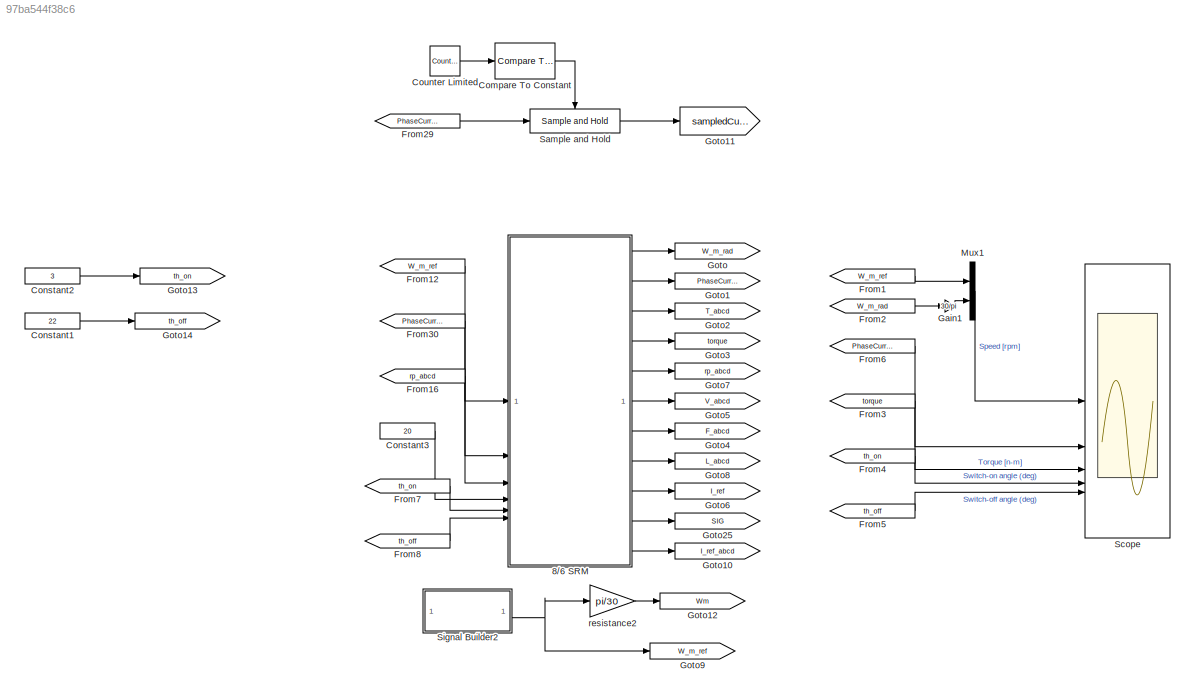
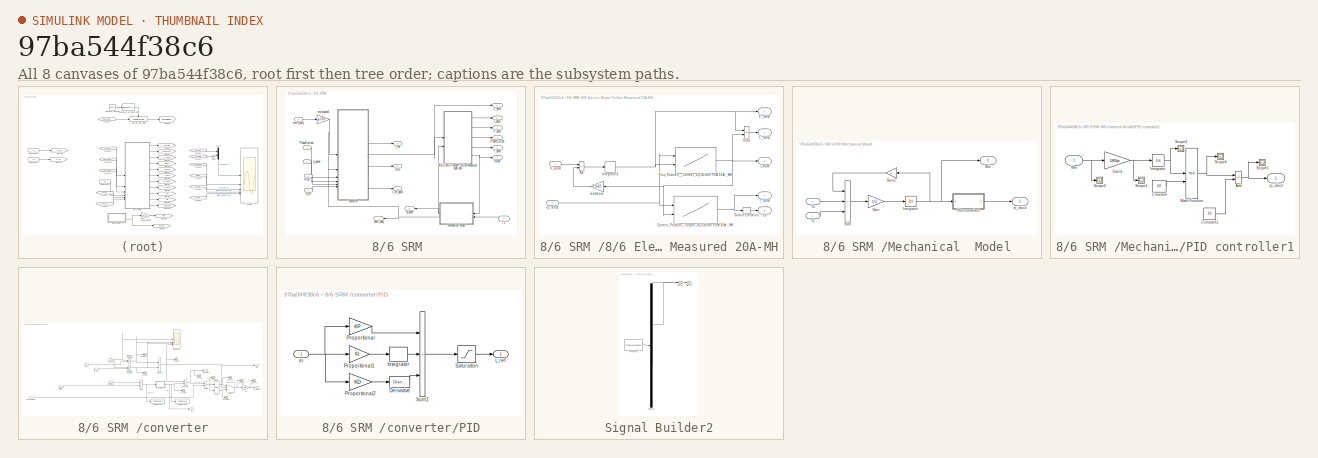
[diagram: thumbnail index - all 8 canvases of the model, root first then tree order]
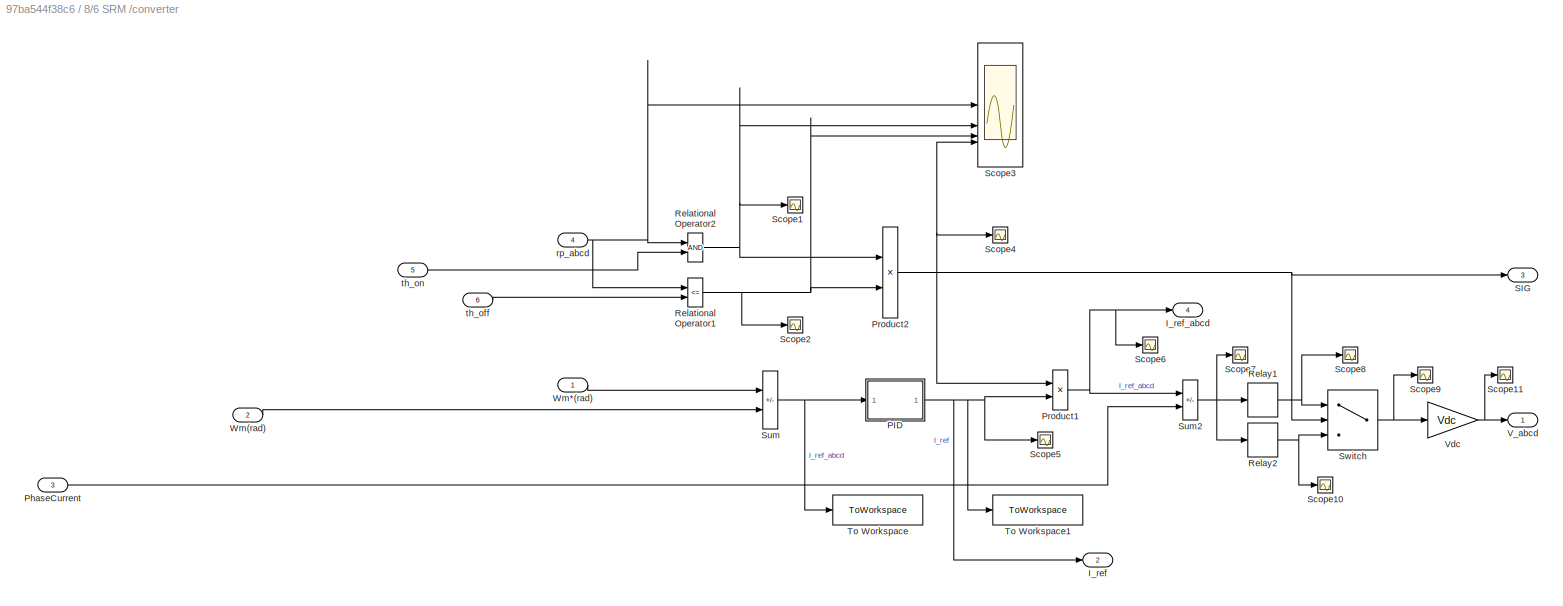
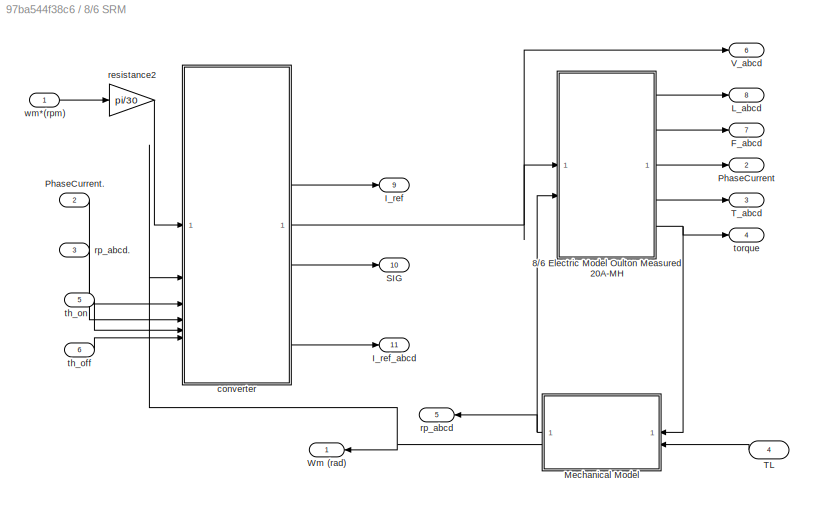
MODEL slx_97ba544f38c6
KIND model
CONFIG AbsTol = auto
CONFIG EnableMultiTasking = off
CONFIG FixedStep = Ts
CONFIG InitFcn = eval  SRM_Parameters ;
CONFIG MaxStep = auto
CONFIG MinStep = auto
CONFIG RelTol = 1e-3
CONFIG SampleTimeConstraint = Unconstrained
CONFIG SolverName = ode4
CONFIG StartTime = 0.0
CONFIG StopTime = 1.5
BLOCK [SubSystem] 8//6 SRM 
BLOCK [SubSystem] 8//6 SRM /8//6 Electric Model Oulton Measured 20A-MH
BLOCK [Sum] 8//6 SRM /8//6 Electric Model Oulton Measured 20A-MH/Ad
  IconShape = rectangular
  Inputs = +-
BLOCK [Lookup2D] 8//6 SRM /8//6 Electric Model Oulton Measured 20A-MH/Current_Position_Torque_4Q Oulton FEM 30A _MH.
  ColumnIndex = [0:0.2:30];
  InitFcn = T_4Q_MH = [    0,   0,   0,   0,   0,0.001,0.001,0.001,0.002,0.002,0.003,0.004,0.004,0.005,0.006,0.007,0.008,0.009,0.01,0.011,0.012,0.014,0.015,0.016,0.017,0.018,0.019,0.02,0.021,0.022,0.023,0.023,0.024,0.025,0.025,0.026,0.026,0.026,0.027,0.027,0.028,0.028,0.028,0.028,0.029,0.029,0.029,0.029,0.03,0.03,0.03,0.03,0.03,0.03,0.031,0.031,0.031,0.031,0.031,0.031,0.031,0.032,0.032,0.032,0.032,0.032,0.032...<+116278ch>
  InputSameDT = off
  RowIndex = [-30:0.5:30]
  SaturateOnIntegerOverflow = off
  Table = T_4Q_MH
BLOCK [Product] 8//6 SRM /8//6 Electric Model Oulton Measured 20A-MH/Divid
  Inputs = */
BLOCK [Outport] 8//6 SRM /8//6 Electric Model Oulton Measured 20A-MH/F_abcd
  Port = 2
BLOCK [Lookup2D] 8//6 SRM /8//6 Electric Model Oulton Measured 20A-MH/Flux_Position__Current_4Q Oulton FEM 30A _MH.
  ColumnIndex = my_flux_MH
  InitFcn = my_flux_MH = linspace(0,0.9,300);                                                                                                                                                                                                                                                                                                                                                                               ...<+219307ch>
  InputSameDT = off
  RowIndex = [-30:0.5:30]
  SaturateOnIntegerOverflow = off
  Table = Curr_F_4Q_MH
BLOCK [Outport] 8//6 SRM /8//6 Electric Model Oulton Measured 20A-MH/I_abcd
  Port = 3
BLOCK [DiscreteIntegrator] 8//6 SRM /8//6 Electric Model Oulton Measured 20A-MH/Integrator1
  ICPrevOutput = DiscIntNeverNeededParam
  ICPrevScaledInput = DiscIntNeverNeededParam
  InitialConditionSetting = Auto
  LimitOutput = on
  LowerSaturationLimit = 0
  SampleTime = Ts
BLOCK [Outport] 8//6 SRM /8//6 Electric Model Oulton Measured 20A-MH/L_abcd
BLOCK [Sum] 8//6 SRM /8//6 Electric Model Oulton Measured 20A-MH/Sum of Elements
  IconShape = rectangular
  Inputs = +
BLOCK [Outport] 8//6 SRM /8//6 Electric Model Oulton Measured 20A-MH/T_abcd
  Port = 4
BLOCK [Outport] 8//6 SRM /8//6 Electric Model Oulton Measured 20A-MH/Te
  Port = 5
BLOCK [Inport] 8//6 SRM /8//6 Electric Model Oulton Measured 20A-MH/V_abcd
BLOCK [Gain] 8//6 SRM /8//6 Electric Model Oulton Measured 20A-MH/resistance
  Gain = 0.642
BLOCK [Inport] 8//6 SRM /8//6 Electric Model Oulton Measured 20A-MH/rp_abcd
  Port = 2
BLOCK [Outport] 8//6 SRM /F_abcd
  Port = 7
BLOCK [Outport] 8//6 SRM /I_ref
  Port = 9
BLOCK [Outport] 8//6 SRM /I_ref_abcd
  Port = 11
BLOCK [Outport] 8//6 SRM /L_abcd
  Port = 8
BLOCK [SubSystem] 8//6 SRM /Mechanical  Model
  NameLocation = top
BLOCK [Gain] 8//6 SRM /Mechanical  Model/Gain
  Gain = 1/J
  NameLocation = top
BLOCK [Gain] 8//6 SRM /Mechanical  Model/Gain2
  Gain = B
  NameLocation = top
BLOCK [Integrator] 8//6 SRM /Mechanical  Model/Integrator
  NameLocation = top
BLOCK [SubSystem] 8//6 SRM /Mechanical  Model/PID controller1
BLOCK [Sum] 8//6 SRM /Mechanical  Model/PID controller1/Add
  IconShape = rectangular
  Inputs = +-
BLOCK [Constant] 8//6 SRM /Mechanical  Model/PID controller1/Constant
  NameLocation = top
  Value = 60
BLOCK [Constant] 8//6 SRM /Mechanical  Model/PID controller1/Constant1
  Value = 30
BLOCK [Gain] 8//6 SRM /Mechanical  Model/PID controller1/Gain1
  Gain = 180/pi
  NameLocation = top
  OutDataTypeStr = Inherit: Same as input
  ParamDataTypeStr = Inherit: Same as input
  SaturateOnIntegerOverflow = on
BLOCK [Integrator] 8//6 SRM /Mechanical  Model/PID controller1/Integrator
  InitialCondition = [0 -15 -30 -45]
BLOCK [Math] 8//6 SRM /Mechanical  Model/PID controller1/Math Function
  NameLocation = top
  Operator = mod
  SignedPower = on
BLOCK [Scope] 8//6 SRM /Mechanical  Model/PID controller1/Scope1
  Floating = off
  NumInputPorts = 1
  ScopeSpecificationString = Simulink.scopes.TimeScopeBlockCfg('CurrentConfiguration', extmgr.ConfigurationSet(extmgr.Configuration('Core','General UI',true),extmgr.Configuration('Core','Source UI',true),extmgr.Configuration('Sources','WiredSimulink',true,'DataLoggingVariableName','ScopeData1'),extmgr.Configuration('Visuals','Time Domain',true,'SerializedDisplays',{struct('MinYLimReal','0','MaxYLimReal','12100','YLabelReal','...<+1447ch>
BLOCK [Scope] 8//6 SRM /Mechanical  Model/PID controller1/Scope2
  Floating = off
  NumInputPorts = 1
  ScopeSpecificationString = Simulink.scopes.TimeScopeBlockCfg('CurrentConfiguration', extmgr.ConfigurationSet(extmgr.Configuration('Core','General UI',true),extmgr.Configuration('Core','Source UI',true),extmgr.Configuration('Sources','WiredSimulink',true,'DataLoggingVariableName','ScopeData2'),extmgr.Configuration('Visuals','Time Domain',true,'SerializedDisplays',{struct('MinYLimReal','71.36007','MaxYLimReal','74.69083','YLa...<+1490ch>
BLOCK [Scope] 8//6 SRM /Mechanical  Model/PID controller1/Scope3
  Floating = off
  NumInputPorts = 1
  ScopeSpecificationString = Simulink.scopes.TimeScopeBlockCfg('CurrentConfiguration', extmgr.ConfigurationSet(extmgr.Configuration('Core','General UI',true),extmgr.Configuration('Core','Source UI',true),extmgr.Configuration('Sources','WiredSimulink',true,'DataLoggingVariableName','ScopeData3'),extmgr.Configuration('Visuals','Time Domain',true,'SerializedDisplays',{struct('MinYLimReal','-100.00000','MaxYLimReal','9000.00000',...<+1555ch>
BLOCK [Scope] 8//6 SRM /Mechanical  Model/PID controller1/Scope4
  Floating = off
  NumInputPorts = 1
  ScopeSpecificationString = Simulink.scopes.TimeScopeBlockCfg('CurrentConfiguration', extmgr.ConfigurationSet(extmgr.Configuration('Core','General UI',true),extmgr.Configuration('Core','Source UI',true),extmgr.Configuration('Sources','WiredSimulink',true,'DataLoggingVariableName','ScopeData4'),extmgr.Configuration('Visuals','Time Domain',true,'SerializedDisplays',{struct('MinYLimReal','-4.95397','MaxYLimReal','61.1565','YLab...<+1551ch>
BLOCK [Scope] 8//6 SRM /Mechanical  Model/PID controller1/Scope5
  Floating = off
  NumInputPorts = 1
  ScopeSpecificationString = Simulink.scopes.TimeScopeBlockCfg('CurrentConfiguration', extmgr.ConfigurationSet(extmgr.Configuration('Core','General UI',true),extmgr.Configuration('Core','Source UI',true),extmgr.Configuration('Sources','WiredSimulink',true,'DataLoggingVariableName','ScopeData5'),extmgr.Configuration('Visuals','Time Domain',true,'SerializedDisplays',{struct('MinYLimReal','-60','MaxYLimReal','40','YLabelReal',''...<+1469ch>
BLOCK [Inport] 8//6 SRM /Mechanical  Model/PID controller1/Wm
BLOCK [Outport] 8//6 SRM /Mechanical  Model/PID controller1/rp_abcd
BLOCK [Sum] 8//6 SRM /Mechanical  Model/Sum
  IconShape = rectangular
  Inputs = -+-
  NameLocation = top
BLOCK [Inport] 8//6 SRM /Mechanical  Model/TL
  Port = 2
BLOCK [Inport] 8//6 SRM /Mechanical  Model/Te
BLOCK [Outport] 8//6 SRM /Mechanical  Model/Wm
  Port = 2
BLOCK [Outport] 8//6 SRM /Mechanical  Model/rp_abcd
BLOCK [Outport] 8//6 SRM /PhaseCurrent
  Port = 2
BLOCK [Inport] 8//6 SRM /PhaseCurrent.
  Port = 2
BLOCK [Outport] 8//6 SRM /SIG
  Port = 10
BLOCK [Inport] 8//6 SRM /TL
  NameLocation = top
  Port = 4
BLOCK [Outport] 8//6 SRM /T_abcd
  Port = 3
BLOCK [Outport] 8//6 SRM /V_abcd
  Port = 6
BLOCK [Outport] 8//6 SRM /Wm (rad)
  NameLocation = top
BLOCK [SubSystem] 8//6 SRM /converter
BLOCK [Outport] 8//6 SRM /converter/I_ref
  Port = 2
BLOCK [Outport] 8//6 SRM /converter/I_ref_abcd
  Port = 4
BLOCK [SubSystem] 8//6 SRM /converter/PID
BLOCK [Reference] 8//6 SRM /converter/PID/ Derivative  REF=simulink/Discrete/Discrete Derivative
  SourceBlock = simulink/Discrete/Discrete Derivative
  SourceType = Discrete Derivative
BLOCK [Outport] 8//6 SRM /converter/PID/I_ref
BLOCK [DiscreteIntegrator] 8//6 SRM /converter/PID/Integrator
  ICPrevOutput = DiscIntNeverNeededParam
  ICPrevScaledInput = DiscIntNeverNeededParam
  InitialConditionSetting = Auto
  SampleTime = -1
BLOCK [Gain] 8//6 SRM /converter/PID/Proportional
  Gain = KP
  OutDataTypeStr = Inherit: Same as input
  ParamDataTypeStr = Inherit: Same as input
  SaturateOnIntegerOverflow = on
BLOCK [Gain] 8//6 SRM /converter/PID/Proportional1
  Gain = KI
  OutDataTypeStr = Inherit: Same as input
  ParamDataTypeStr = Inherit: Same as input
  SaturateOnIntegerOverflow = on
BLOCK [Gain] 8//6 SRM /converter/PID/Proportional2
  Gain = KD
  OutDataTypeStr = Inherit: Same as input
  ParamDataTypeStr = Inherit: Same as input
  SaturateOnIntegerOverflow = on
BLOCK [Saturate] 8//6 SRM /converter/PID/Saturation
  LowerLimit = -I_peak
  UpperLimit = I_peak
BLOCK [Sum] 8//6 SRM /converter/PID/Sum1
  IconShape = rectangular
  InputSameDT = on
  Inputs = +++
  OutDataTypeStr = Inherit: Same as first input
  SaturateOnIntegerOverflow = on
BLOCK [Inport] 8//6 SRM /converter/PID/in
BLOCK [Inport] 8//6 SRM /converter/PhaseCurrent
  Port = 3
BLOCK [Product] 8//6 SRM /converter/Product1
  OutDataTypeStr = double
  SaturateOnIntegerOverflow = on
BLOCK [Product] 8//6 SRM /converter/Product2
  OutDataTypeStr = double
  SaturateOnIntegerOverflow = on
BLOCK [RelationalOperator] 8//6 SRM /converter/Relational Operator1
  InputSameDT = off
  NameLocation = top
  Operator = <=
  OutDataTypeStr = fixdt(1,16)
BLOCK [RelationalOperator] 8//6 SRM /converter/Relational Operator2
  InputSameDT = off
  NameLocation = top
  OutDataTypeStr = fixdt(1,16)
BLOCK [Relay] 8//6 SRM /converter/Relay1
  OffOutputValue = -1
  OffSwitchValue = -di
  OnSwitchValue = di
  SampleTime = Ts
BLOCK [Relay] 8//6 SRM /converter/Relay2
  OffOutputValue = -1
  OffSwitchValue = -0.001
  OnSwitchValue = 0.001
  SampleTime = Ts
BLOCK [Outport] 8//6 SRM /converter/SIG
  Port = 3
BLOCK [Scope] 8//6 SRM /converter/Scope1
  Floating = off
  NumInputPorts = 1
  ScopeSpecificationString = Simulink.scopes.TimeScopeBlockCfg('CurrentConfiguration', extmgr.ConfigurationSet(extmgr.Configuration('Core','General UI',true),extmgr.Configuration('Core','Source UI',true),extmgr.Configuration('Sources','WiredSimulink',true,'DataLoggingVariableName','ScopeData7'),extmgr.Configuration('Visuals','Time Domain',true,'SerializedDisplays',{struct('MinYLimReal','-0.1','MaxYLimReal','1.2','YLabelReal',...<+1557ch>
BLOCK [Scope] 8//6 SRM /converter/Scope10
  Floating = off
  NumInputPorts = 1
  ScopeSpecificationString = Simulink.scopes.TimeScopeBlockCfg('CurrentConfiguration', extmgr.ConfigurationSet(extmgr.Configuration('Core','General UI',true),extmgr.Configuration('Core','Source UI',true),extmgr.Configuration('Sources','WiredSimulink',true,'DataLoggingVariableName','ScopeData15'),extmgr.Configuration('Visuals','Time Domain',true,'SerializedDisplays',{struct('MinYLimReal','-0.24508','MaxYLimReal','0.98005','YLa...<+1524ch>
BLOCK [Scope] 8//6 SRM /converter/Scope11
  Floating = off
  NumInputPorts = 1
  ScopeSpecificationString = Simulink.scopes.TimeScopeBlockCfg('CurrentConfiguration', extmgr.ConfigurationSet(extmgr.Configuration('Core','General UI',true),extmgr.Configuration('Core','Source UI',true),extmgr.Configuration('Sources','WiredSimulink',true,'DataLoggingVariableName','ScopeData16'),extmgr.Configuration('Visuals','Time Domain',true,'SerializedDisplays',{struct('MinYLimReal','-0.1','MaxYLimReal','640','YLabelReal'...<+1490ch>
BLOCK [Scope] 8//6 SRM /converter/Scope2
  Floating = off
  NumInputPorts = 1
  ScopeSpecificationString = Simulink.scopes.TimeScopeBlockCfg('CurrentConfiguration', extmgr.ConfigurationSet(extmgr.Configuration('Core','General UI',true),extmgr.Configuration('Core','Source UI',true),extmgr.Configuration('Sources','WiredSimulink',true,'DataLoggingVariableName','ScopeData8'),extmgr.Configuration('Visuals','Time Domain',true,'SerializedDisplays',{struct('MinYLimReal','-0.04091','MaxYLimReal','1.0347','YLabe...<+1575ch>
BLOCK [Scope] 8//6 SRM /converter/Scope3
  Floating = off
  NumInputPorts = 4
  ScopeSpecificationString = Simulink.scopes.TimeScopeBlockCfg('CurrentConfiguration', extmgr.ConfigurationSet(extmgr.Configuration('Core','General UI',true),extmgr.Configuration('Core','Source UI',true),extmgr.Configuration('Sources','WiredSimulink',true,'DataLoggingVariableName','ScopeData9'),extmgr.Configuration('Visuals','Time Domain',true,'SerializedDisplays',{struct('MinYLimReal','-33','MaxYLimReal','33','YLabelReal',''...<+3709ch>
BLOCK [Scope] 8//6 SRM /converter/Scope4
  Floating = off
  NumInputPorts = 1
  ScopeSpecificationString = Simulink.scopes.TimeScopeBlockCfg('CurrentConfiguration', extmgr.ConfigurationSet(extmgr.Configuration('Core','General UI',true),extmgr.Configuration('Core','Source UI',true),extmgr.Configuration('Sources','WiredSimulink',true,'DataLoggingVariableName','ScopeData6'),extmgr.Configuration('Visuals','Time Domain',true,'SerializedDisplays',{struct('MinYLimReal','-0.1','MaxYLimReal','1.2','YLabelReal',...<+1509ch>
BLOCK [Scope] 8//6 SRM /converter/Scope5
  Floating = off
  NumInputPorts = 1
  ScopeSpecificationString = Simulink.scopes.TimeScopeBlockCfg('CurrentConfiguration', extmgr.ConfigurationSet(extmgr.Configuration('Core','General UI',true),extmgr.Configuration('Core','Source UI',true),extmgr.Configuration('Sources','WiredSimulink',true,'DataLoggingVariableName','ScopeData10'),extmgr.Configuration('Visuals','Time Domain',true,'SerializedDisplays',{struct('MinYLimReal','-0.1','MaxYLimReal','20','YLabelReal',...<+1464ch>
BLOCK [Scope] 8//6 SRM /converter/Scope6
  Floating = off
  NumInputPorts = 1
  ScopeSpecificationString = Simulink.scopes.TimeScopeBlockCfg('CurrentConfiguration', extmgr.ConfigurationSet(extmgr.Configuration('Core','General UI',true),extmgr.Configuration('Core','Source UI',true),extmgr.Configuration('Sources','WiredSimulink',true,'DataLoggingVariableName','ScopeData11'),extmgr.Configuration('Visuals','Time Domain',true,'SerializedDisplays',{struct('MinYLimReal','-0.1','MaxYLimReal','18','YLabelReal',...<+1516ch>
BLOCK [Scope] 8//6 SRM /converter/Scope7
  Floating = off
  NumInputPorts = 1
  ScopeSpecificationString = Simulink.scopes.TimeScopeBlockCfg('CurrentConfiguration', extmgr.ConfigurationSet(extmgr.Configuration('Core','General UI',true),extmgr.Configuration('Core','Source UI',true),extmgr.Configuration('Sources','WiredSimulink',true,'DataLoggingVariableName','ScopeData12'),extmgr.Configuration('Visuals','Time Domain',true,'SerializedDisplays',{struct('MinYLimReal','-7.52731','MaxYLimReal','19.34249','YL...<+1520ch>
BLOCK [Scope] 8//6 SRM /converter/Scope8
  Floating = off
  NumInputPorts = 1
  ScopeSpecificationString = Simulink.scopes.TimeScopeBlockCfg('CurrentConfiguration', extmgr.ConfigurationSet(extmgr.Configuration('Core','General UI',true),extmgr.Configuration('Core','Source UI',true),extmgr.Configuration('Sources','WiredSimulink',true,'DataLoggingVariableName','ScopeData13'),extmgr.Configuration('Visuals','Time Domain',true,'SerializedDisplays',{struct('MinYLimReal','-0.1','MaxYLimReal','1.2','YLabelReal'...<+1500ch>
BLOCK [Scope] 8//6 SRM /converter/Scope9
  Floating = off
  NumInputPorts = 1
  ScopeSpecificationString = Simulink.scopes.TimeScopeBlockCfg('CurrentConfiguration', extmgr.ConfigurationSet(extmgr.Configuration('Core','General UI',true),extmgr.Configuration('Core','Source UI',true),extmgr.Configuration('Sources','WiredSimulink',true,'DataLoggingVariableName','ScopeData14'),extmgr.Configuration('Visuals','Time Domain',true,'SerializedDisplays',{struct('MinYLimReal','-0.1','MaxYLimReal','1.2','YLabelReal'...<+1502ch>
BLOCK [Sum] 8//6 SRM /converter/Sum
  IconShape = rectangular
  Inputs = +-
BLOCK [Sum] 8//6 SRM /converter/Sum2
  IconShape = rectangular
  Inputs = +-
  SaturateOnIntegerOverflow = on
BLOCK [Switch] 8//6 SRM /converter/Switch
  Criteria = u2 > Threshold
  InputSameDT = off
  SaturateOnIntegerOverflow = off
BLOCK [ToWorkspace] 8//6 SRM /converter/To Workspace
  Decimation = 4
  FixptAsFi = on
  MaxDataPoints = inf
  SampleTime = -1
  SaveFormat = Timeseries
  VariableName = Input_current
BLOCK [ToWorkspace] 8//6 SRM /converter/To Workspace1
  Decimation = 4
  FixptAsFi = on
  MaxDataPoints = inf
  SampleTime = -1
  SaveFormat = Timeseries
  VariableName = output_current
BLOCK [Outport] 8//6 SRM /converter/V_abcd
BLOCK [Gain] 8//6 SRM /converter/Vdc
  Gain = Vdc
  NameLocation = top
BLOCK [Inport] 8//6 SRM /converter/Wm(rad)
  Port = 2
BLOCK [Inport] 8//6 SRM /converter/Wm*(rad)
BLOCK [Inport] 8//6 SRM /converter/rp_abcd
  Port = 4
BLOCK [Inport] 8//6 SRM /converter/th_off
  Port = 6
BLOCK [Inport] 8//6 SRM /converter/th_on
  Port = 5
BLOCK [Gain] 8//6 SRM /resistance2
  Gain = pi/30
  NameLocation = top
BLOCK [Outport] 8//6 SRM /rp_abcd
  NameLocation = top
  Port = 5
BLOCK [Inport] 8//6 SRM /rp_abcd.
  Port = 3
BLOCK [Inport] 8//6 SRM /th_off
  Port = 6
BLOCK [Inport] 8//6 SRM /th_on
  Port = 5
BLOCK [Outport] 8//6 SRM /torque
  Port = 4
BLOCK [Inport] 8//6 SRM /wm*(rpm)
BLOCK [Reference] Compare To Constant  REF=simulink/Logic and Bit
Operations/Compare
To Constant
  SourceBlock = simulink/Logic and Bit\nOperations/Compare\nTo Constant
  SourceType = Compare To Constant
BLOCK [Constant] Constant1
  Value = 22
BLOCK [Constant] Constant2
  Value = 3
BLOCK [Constant] Constant3
  Value = 20
BLOCK [Reference] Counter Limited  REF=simulink/Sources/Counter
Limited
  SourceBlock = simulink/Sources/Counter\nLimited
  SourceType = Counter Limited
BLOCK [From] From1
  GotoTag = W_m_ref
  TagVisibility = global
BLOCK [From] From12
  GotoTag = W_m_ref
  TagVisibility = global
BLOCK [From] From16
  GotoTag = rp_abcd
  TagVisibility = global
BLOCK [From] From2
  GotoTag = W_m_rad
  TagVisibility = global
BLOCK [From] From29
  GotoTag = PhaseCurrent
  TagVisibility = global
BLOCK [From] From3
  GotoTag = torque
  TagVisibility = global
BLOCK [From] From30
  GotoTag = PhaseCurrent
  TagVisibility = global
BLOCK [From] From4
  GotoTag = th_on
  TagVisibility = global
BLOCK [From] From5
  GotoTag = th_off
  TagVisibility = global
BLOCK [From] From6
  GotoTag = PhaseCurrent
  TagVisibility = global
BLOCK [From] From7
  GotoTag = th_on
  TagVisibility = global
BLOCK [From] From8
  GotoTag = th_off
  TagVisibility = global
BLOCK [Gain] Gain1
  Gain = 30/pi
BLOCK [Goto] Goto
  GotoTag = W_m_rad
  TagVisibility = global
BLOCK [Goto] Goto1
  GotoTag = PhaseCurrent
  TagVisibility = global
BLOCK [Goto] Goto10
  GotoTag = I_ref_abcd
  TagVisibility = global
BLOCK [Goto] Goto11
  GotoTag = sampledCurrent
BLOCK [Goto] Goto12
  GotoTag = Wm
  TagVisibility = global
BLOCK [Goto] Goto13
  GotoTag = th_on
  TagVisibility = global
BLOCK [Goto] Goto14
  GotoTag = th_off
  TagVisibility = global
BLOCK [Goto] Goto2
  GotoTag = T_abcd
  TagVisibility = global
BLOCK [Goto] Goto25
  GotoTag = SIG
  TagVisibility = global
BLOCK [Goto] Goto3
  GotoTag = torque
  TagVisibility = global
BLOCK [Goto] Goto4
  GotoTag = F_abcd
  TagVisibility = global
BLOCK [Goto] Goto5
  GotoTag = V_abcd
  TagVisibility = global
BLOCK [Goto] Goto6
  GotoTag = I_ref
  TagVisibility = global
BLOCK [Goto] Goto7
  GotoTag = rp_abcd
  TagVisibility = global
BLOCK [Goto] Goto8
  GotoTag = L_abcd
  TagVisibility = global
BLOCK [Goto] Goto9
  GotoTag = W_m_ref
  TagVisibility = global
BLOCK [Mux] Mux1
  DisplayOption = bar
  Inputs = 2
BLOCK [Reference] Sample and Hold  REF=dspsigops/Sample
and Hold
  SourceBlock = dspsigops/Sample\nand Hold
  SourceType = Sample and Hold
BLOCK [Scope] Scope
  Floating = off
  NumInputPorts = 5
  ScopeSpecificationString = Simulink.scopes.TimeScopeBlockCfg('CurrentConfiguration', extmgr.ConfigurationSet(extmgr.Configuration('Core','General UI',true),extmgr.Configuration('Core','Source UI',true),extmgr.Configuration('Sources','WiredSimulink',true),extmgr.Configuration('Visuals','Time Domain',true,'SerializedDisplays',{struct('MinYLimReal','-43.81335','MaxYLimReal','338.20148','YLabelReal','','MinYLimMag','0.00000','M...<+4237ch>
BLOCK [SubSystem] Signal Builder2
  ClipboardFcn = sigbuilder_block('clipboard');
  CloseFcn = sigbuilder_block('close');
  ContinueFcn = sigbuilder_block('continue');
  CopyFcn = sigbuilder_block('copy');
  DeleteFcn = sigbuilder_block('delete');
  LoadFcn = sigbuilder_block('load');
  MaskHideContents = on
  ModelCloseFcn = sigbuilder_block('modelClose');
  NameChangeFcn = sigbuilder_block('namechange');
  OpenFcn = sigbuilder_block('open',[236.4 90.6 550.8 361.2 ]);
  PauseFcn = sigbuilder_block('pause');
  PreSaveFcn = sigbuilder_block('preSave');
  StartFcn = sigbuilder_block('start');
  StopFcn = sigbuilder_block('stop');
  Tag = STV Subsys
BLOCK [Demux] Signal Builder2/Demux
  DisplayOption = none
  Outputs = 2
  Tag = STV Demux
BLOCK [FromWorkspace] Signal Builder2/FromWs
  Tag = STV FromWs
  VariableName = tuvar
BLOCK [Outport] Signal Builder2/Signal 1
  Tag = STV Outport
BLOCK [Outport] Signal Builder2/Signal 3
  Port = 2
  Tag = STV Outport
BLOCK [Gain] resistance2
  Gain = pi/30
  NameLocation = top
LINE 8//6 SRM /8//6 Electric Model Oulton Measured 20A-MH/Ad:1 -> 8//6 SRM /8//6 Electric Model Oulton Measured 20A-MH/Integrator1:1
NET 8//6 SRM /8//6 Electric Model Oulton Measured 20A-MH/Current_Position_Torque_4Q Oulton FEM 30A _MH.:1 -> 8//6 SRM /8//6 Electric Model Oulton Measured 20A-MH/Sum of Elements:1, 8//6 SRM /8//6 Electric Model Oulton Measured 20A-MH/T_abcd:1
LINE 8//6 SRM /8//6 Electric Model Oulton Measured 20A-MH/Divid:1 -> 8//6 SRM /8//6 Electric Model Oulton Measured 20A-MH/L_abcd:1
NET 8//6 SRM /8//6 Electric Model Oulton Measured 20A-MH/Flux_Position__Current_4Q Oulton FEM 30A _MH.:1 -> 8//6 SRM /8//6 Electric Model Oulton Measured 20A-MH/Current_Position_Torque_4Q Oulton FEM 30A _MH.:2, 8//6 SRM /8//6 Electric Model Oulton Measured 20A-MH/Divid:2, 8//6 SRM /8//6 Electric Model Oulton Measured 20A-MH/I_abcd:1, 8//6 SRM /8//6 Electric Model Oulton Measured 20A-MH/resistance:1
NET 8//6 SRM /8//6 Electric Model Oulton Measured 20A-MH/Integrator1:1 -> 8//6 SRM /8//6 Electric Model Oulton Measured 20A-MH/Divid:1, 8//6 SRM /8//6 Electric Model Oulton Measured 20A-MH/F_abcd:1, 8//6 SRM /8//6 Electric Model Oulton Measured 20A-MH/Flux_Position__Current_4Q Oulton FEM 30A _MH.:2
LINE 8//6 SRM /8//6 Electric Model Oulton Measured 20A-MH/Sum of Elements:1 -> 8//6 SRM /8//6 Electric Model Oulton Measured 20A-MH/Te:1
LINE 8//6 SRM /8//6 Electric Model Oulton Measured 20A-MH/V_abcd:1 -> 8//6 SRM /8//6 Electric Model Oulton Measured 20A-MH/Ad:1
LINE 8//6 SRM /8//6 Electric Model Oulton Measured 20A-MH/resistance:1 -> 8//6 SRM /8//6 Electric Model Oulton Measured 20A-MH/Ad:2
NET 8//6 SRM /8//6 Electric Model Oulton Measured 20A-MH/rp_abcd:1 -> 8//6 SRM /8//6 Electric Model Oulton Measured 20A-MH/Current_Position_Torque_4Q Oulton FEM 30A _MH.:1, 8//6 SRM /8//6 Electric Model Oulton Measured 20A-MH/Flux_Position__Current_4Q Oulton FEM 30A _MH.:1
LINE 8//6 SRM /8//6 Electric Model Oulton Measured 20A-MH:1 -> 8//6 SRM /L_abcd:1
LINE 8//6 SRM /8//6 Electric Model Oulton Measured 20A-MH:2 -> 8//6 SRM /F_abcd:1
LINE 8//6 SRM /8//6 Electric Model Oulton Measured 20A-MH:3 -> 8//6 SRM /PhaseCurrent:1
LINE 8//6 SRM /8//6 Electric Model Oulton Measured 20A-MH:4 -> 8//6 SRM /T_abcd:1
NET 8//6 SRM /8//6 Electric Model Oulton Measured 20A-MH:5 -> 8//6 SRM /Mechanical  Model:1, 8//6 SRM /torque:1
LINE 8//6 SRM /Mechanical  Model/Gain2:1 -> 8//6 SRM /Mechanical  Model/Sum:1
LINE 8//6 SRM /Mechanical  Model/Gain:1 -> 8//6 SRM /Mechanical  Model/Integrator:1
NET 8//6 SRM /Mechanical  Model/Integrator:1 -> 8//6 SRM /Mechanical  Model/Gain2:1, 8//6 SRM /Mechanical  Model/PID controller1:1, 8//6 SRM /Mechanical  Model/Wm:1
NET 8//6 SRM /Mechanical  Model/PID controller1/Add:1 -> 8//6 SRM /Mechanical  Model/PID controller1/Scope5:1, 8//6 SRM /Mechanical  Model/PID controller1/rp_abcd:1
LINE 8//6 SRM /Mechanical  Model/PID controller1/Constant1:1 -> 8//6 SRM /Mechanical  Model/PID controller1/Add:2
LINE 8//6 SRM /Mechanical  Model/PID controller1/Constant:1 -> 8//6 SRM /Mechanical  Model/PID controller1/Math Function:2
NET 8//6 SRM /Mechanical  Model/PID controller1/Gain1:1 -> 8//6 SRM /Mechanical  Model/PID controller1/Integrator:1, 8//6 SRM /Mechanical  Model/PID controller1/Scope1:1
NET 8//6 SRM /Mechanical  Model/PID controller1/Integrator:1 -> 8//6 SRM /Mechanical  Model/PID controller1/Math Function:1, 8//6 SRM /Mechanical  Model/PID controller1/Scope3:1
NET 8//6 SRM /Mechanical  Model/PID controller1/Math Function:1 -> 8//6 SRM /Mechanical  Model/PID controller1/Add:1, 8//6 SRM /Mechanical  Model/PID controller1/Scope4:1
NET 8//6 SRM /Mechanical  Model/PID controller1/Wm:1 -> 8//6 SRM /Mechanical  Model/PID controller1/Gain1:1, 8//6 SRM /Mechanical  Model/PID controller1/Scope2:1
LINE 8//6 SRM /Mechanical  Model/PID controller1:1 -> 8//6 SRM /Mechanical  Model/rp_abcd:1
LINE 8//6 SRM /Mechanical  Model/Sum:1 -> 8//6 SRM /Mechanical  Model/Gain:1
LINE 8//6 SRM /Mechanical  Model/TL:1 -> 8//6 SRM /Mechanical  Model/Sum:3
LINE 8//6 SRM /Mechanical  Model/Te:1 -> 8//6 SRM /Mechanical  Model/Sum:2
NET 8//6 SRM /Mechanical  Model:1 -> 8//6 SRM /8//6 Electric Model Oulton Measured 20A-MH:2, 8//6 SRM /rp_abcd:1
NET 8//6 SRM /Mechanical  Model:2 -> 8//6 SRM /Wm (rad):1, 8//6 SRM /converter:2
LINE 8//6 SRM /PhaseCurrent.:1 -> 8//6 SRM /converter:3
LINE 8//6 SRM /TL:1 -> 8//6 SRM /Mechanical  Model:2
LINE 8//6 SRM /converter/PID/ Derivative:1 -> 8//6 SRM /converter/PID/Sum1:3
LINE 8//6 SRM /converter/PID/Integrator:1 -> 8//6 SRM /converter/PID/Sum1:2
LINE 8//6 SRM /converter/PID/Proportional1:1 -> 8//6 SRM /converter/PID/Integrator:1
LINE 8//6 SRM /converter/PID/Proportional2:1 -> 8//6 SRM /converter/PID/ Derivative:1
LINE 8//6 SRM /converter/PID/Proportional:1 -> 8//6 SRM /converter/PID/Sum1:1
LINE 8//6 SRM /converter/PID/Saturation:1 -> 8//6 SRM /converter/PID/I_ref:1
LINE 8//6 SRM /converter/PID/Sum1:1 -> 8//6 SRM /converter/PID/Saturation:1
NET 8//6 SRM /converter/PID/in:1 -> 8//6 SRM /converter/PID/Proportional1:1, 8//6 SRM /converter/PID/Proportional2:1, 8//6 SRM /converter/PID/Proportional:1
NET 8//6 SRM /converter/PID:1 -> 8//6 SRM /converter/I_ref:1, 8//6 SRM /converter/Product1:2, 8//6 SRM /converter/Scope5:1, 8//6 SRM /converter/To Workspace1:1
LINE 8//6 SRM /converter/PhaseCurrent:1 -> 8//6 SRM /converter/Sum2:2
NET 8//6 SRM /converter/Product1:1 -> 8//6 SRM /converter/I_ref_abcd:1, 8//6 SRM /converter/Scope6:1, 8//6 SRM /converter/Sum2:1
NET 8//6 SRM /converter/Product2:1 -> 8//6 SRM /converter/Product1:1, 8//6 SRM /converter/SIG:1, 8//6 SRM /converter/Scope3:4, 8//6 SRM /converter/Scope4:1, 8//6 SRM /converter/Switch:2
NET 8//6 SRM /converter/Relational Operator1:1 -> 8//6 SRM /converter/Product2:2, 8//6 SRM /converter/Scope2:1, 8//6 SRM /converter/Scope3:3
NET 8//6 SRM /converter/Relational Operator2:1 -> 8//6 SRM /converter/Product2:1, 8//6 SRM /converter/Scope1:1, 8//6 SRM /converter/Scope3:2
NET 8//6 SRM /converter/Relay1:1 -> 8//6 SRM /converter/Scope8:1, 8//6 SRM /converter/Switch:1
NET 8//6 SRM /converter/Relay2:1 -> 8//6 SRM /converter/Scope10:1, 8//6 SRM /converter/Switch:3
NET 8//6 SRM /converter/Sum2:1 -> 8//6 SRM /converter/Relay1:1, 8//6 SRM /converter/Relay2:1, 8//6 SRM /converter/Scope7:1
NET 8//6 SRM /converter/Sum:1 -> 8//6 SRM /converter/PID:1, 8//6 SRM /converter/To Workspace:1
NET 8//6 SRM /converter/Switch:1 -> 8//6 SRM /converter/Scope9:1, 8//6 SRM /converter/Vdc:1
NET 8//6 SRM /converter/Vdc:1 -> 8//6 SRM /converter/Scope11:1, 8//6 SRM /converter/V_abcd:1
LINE 8//6 SRM /converter/Wm(rad):1 -> 8//6 SRM /converter/Sum:2
LINE 8//6 SRM /converter/Wm*(rad):1 -> 8//6 SRM /converter/Sum:1
NET 8//6 SRM /converter/rp_abcd:1 -> 8//6 SRM /converter/Relational Operator1:1, 8//6 SRM /converter/Relational Operator2:1, 8//6 SRM /converter/Scope3:1
LINE 8//6 SRM /converter/th_off:1 -> 8//6 SRM /converter/Relational Operator1:2
LINE 8//6 SRM /converter/th_on:1 -> 8//6 SRM /converter/Relational Operator2:2
NET 8//6 SRM /converter:1 -> 8//6 SRM /8//6 Electric Model Oulton Measured 20A-MH:1, 8//6 SRM /V_abcd:1
LINE 8//6 SRM /converter:2 -> 8//6 SRM /I_ref:1
LINE 8//6 SRM /converter:3 -> 8//6 SRM /SIG:1
LINE 8//6 SRM /converter:4 -> 8//6 SRM /I_ref_abcd:1
LINE 8//6 SRM /resistance2:1 -> 8//6 SRM /converter:1
LINE 8//6 SRM /rp_abcd.:1 -> 8//6 SRM /converter:4
LINE 8//6 SRM /th_off:1 -> 8//6 SRM /converter:6
LINE 8//6 SRM /th_on:1 -> 8//6 SRM /converter:5
LINE 8//6 SRM /wm*(rpm):1 -> 8//6 SRM /resistance2:1
LINE 8//6 SRM :1 -> Goto:1
LINE 8//6 SRM :10 -> Goto25:1
LINE 8//6 SRM :11 -> Goto10:1
LINE 8//6 SRM :2 -> Goto1:1
LINE 8//6 SRM :3 -> Goto2:1
LINE 8//6 SRM :4 -> Goto3:1
LINE 8//6 SRM :5 -> Goto7:1
LINE 8//6 SRM :6 -> Goto5:1
LINE 8//6 SRM :7 -> Goto4:1
LINE 8//6 SRM :8 -> Goto8:1
LINE 8//6 SRM :9 -> Goto6:1
LINE Compare To Constant:1 -> Sample and Hold:trigger
LINE Constant1:1 -> Goto14:1
LINE Constant2:1 -> Goto13:1
LINE Constant3:1 -> 8//6 SRM :4
LINE Counter Limited:1 -> Compare To Constant:1
LINE From12:1 -> 8//6 SRM :1
LINE From16:1 -> 8//6 SRM :3
LINE From1:1 -> Mux1:1
LINE From29:1 -> Sample and Hold:1
LINE From2:1 -> Gain1:1
LINE From30:1 -> 8//6 SRM :2
LINE From3:1 -> Scope:3
LINE From4:1 -> Scope:4
LINE From5:1 -> Scope:5
LINE From6:1 -> Scope:2
LINE From7:1 -> 8//6 SRM :5
LINE From8:1 -> 8//6 SRM :6
LINE Gain1:1 -> Mux1:2
LINE Mux1:1 -> Scope:1
LINE Sample and Hold:1 -> Goto11:1
NET Signal Builder2:2 -> Goto9:1, resistance2:1
LINE resistance2:1 -> Goto12:1
note: NET lines group one-source signal fan-out (src -> all destinations, sorted); 1:1 wires keep LINE
